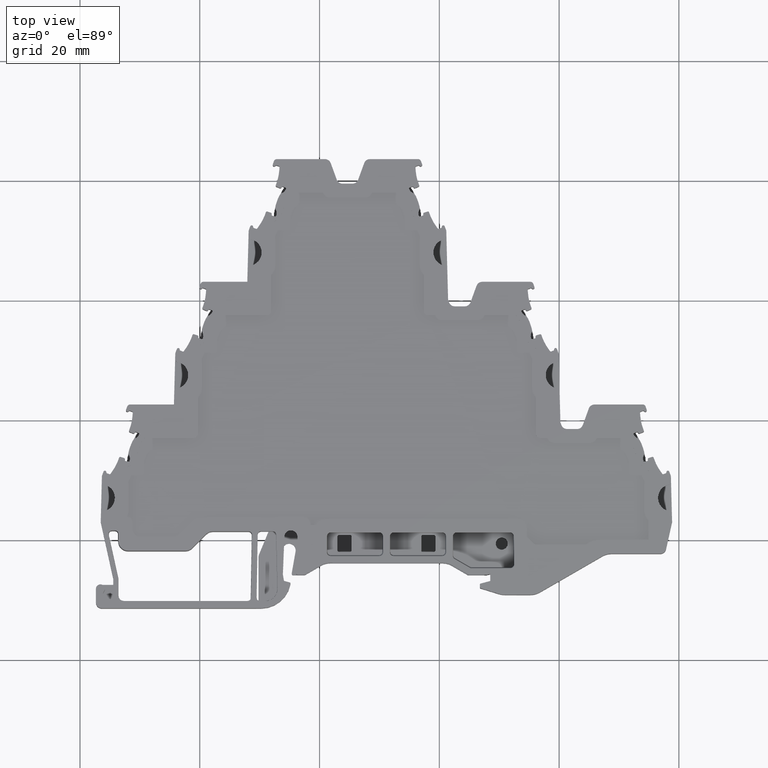
[diagram: clean part render]
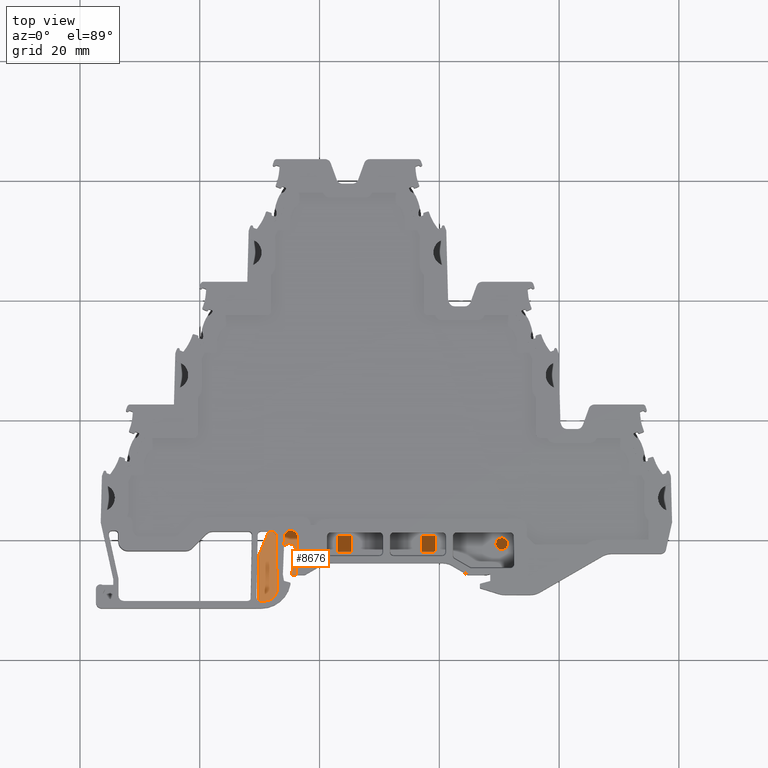
[diagram: same view with one face highlighted and labeled with its STEP entity id]
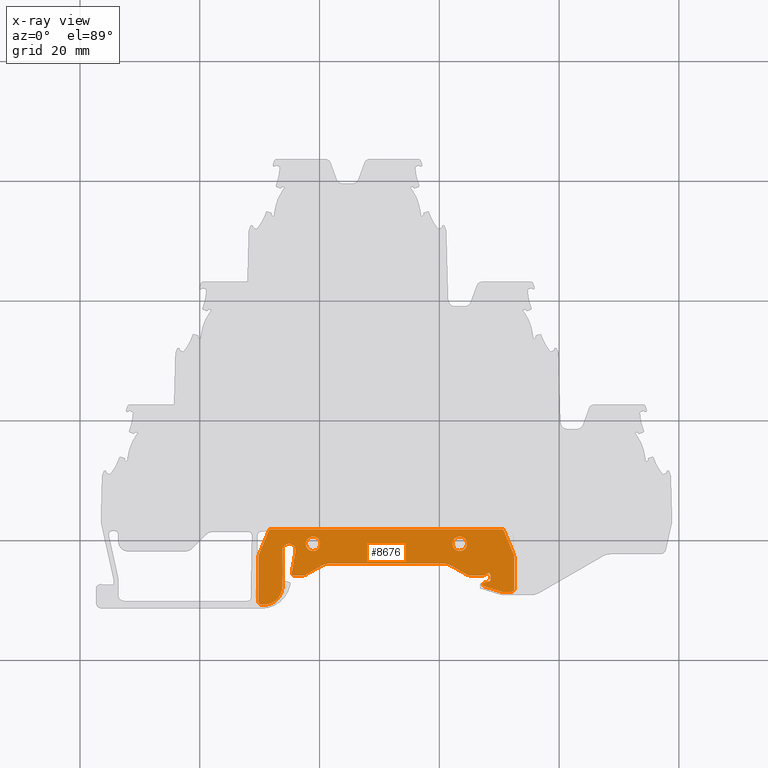
[diagram: x-ray of the same camera — body ghosted, the highlighted face saturated]
A machine part, top view. The second image highlights one B-rep face of the part: STEP entity #8676.
The next image is the same camera in x-ray: the body ghosted, the highlighted face saturated — about 0% of this face is hidden behind the body in this view.
In plain terms, the highlighted planar face has unit normal (-0, 0, -1).
Its self-contained STEP definition (entity closure, byte-faithful):
#25 = CARTESIAN_POINT ( 'NONE',  ( 1261.762938052043864, 756.0945901753019598, 3.425000000013875390 ) ) ;
#232 = VERTEX_POINT ( 'NONE', #2724 ) ;
#333 = CARTESIAN_POINT ( 'NONE',  ( 1287.267520204509992, 752.6346641252999916, 3.425000000003795453 ) ) ;
#547 = CARTESIAN_POINT ( 'NONE',  ( 1250.231337423040031, 749.2423689074909134, 3.424999999993710187 ) ) ;
#578 = CARTESIAN_POINT ( 'NONE',  ( 1292.511858430823850, 751.8485278146060864, 3.425000000001555467 ) ) ;
#618 = LINE ( 'NONE', #6256, #29927 ) ;
#793 = CIRCLE ( 'NONE', #17655, 3.000000000001223910 ) ;
#833 = CARTESIAN_POINT ( 'NONE',  ( 1253.811855569803811, 752.3099273790710413, 3.425000000002799805 ) ) ;
#858 = LINE ( 'NONE', #18043, #33421 ) ;
#959 = CIRCLE ( 'NONE', #35256, 0.2500000000003055334 ) ;
#1696 = EDGE_CURVE ( 'NONE', #8011, #3249, #31667, .T. ) ;
#1741 = CARTESIAN_POINT ( 'NONE',  ( 1287.517520204509992, 752.6346641252989684, 3.425000000003795453 ) ) ;
#1963 = CARTESIAN_POINT ( 'NONE',  ( 1290.634989282036486, 761.8130462823676226, 3.425000000030690384 ) ) ;
#2256 = DIRECTION ( 'NONE',  ( -2.960594732334076854E-12, -1.000000000000000000, -2.960594732334076854E-12 ) ) ;
#2277 = EDGE_CURVE ( 'NONE', #15313, #9259, #32645, .T. ) ;
#2496 = ORIENTED_EDGE ( 'NONE', *, *, #8839, .F. ) ;
#2498 = CARTESIAN_POINT ( 'NONE',  ( 1288.511858430829989, 753.1599273789639710, 3.425000000005345324 ) ) ;
#2517 = AXIS2_PLACEMENT_3D ( 'NONE', #36733, #36351, #2256 ) ;
#2724 = CARTESIAN_POINT ( 'NONE',  ( 1287.560225396755868, 754.1501041373800263, 3.425000000008235457 ) ) ;
#2768 = EDGE_CURVE ( 'NONE', #30899, #232, #4460, .T. ) ;
#2968 = VERTEX_POINT ( 'NONE', #29131 ) ;
#3249 = VERTEX_POINT ( 'NONE', #33986 ) ;
#3364 = CARTESIAN_POINT ( 'NONE',  ( 1251.485975355703886, 761.4409010957489272, 3.425000000029900349 ) ) ;
#3367 = DIRECTION ( 'NONE',  ( -1.000000000000000000, 3.015302874738534922E-12, 3.491481338421395299E-15 ) ) ;
#3531 = CARTESIAN_POINT ( 'NONE',  ( 1283.411855569846011, 759.3850622030839759, 3.425000000015005153 ) ) ;
#3596 = VERTEX_POINT ( 'NONE', #7031 ) ;
#3683 = ORIENTED_EDGE ( 'NONE', *, *, #36969, .F. ) ;
#3840 = VERTEX_POINT ( 'NONE', #25 ) ;
#3966 = DIRECTION ( 'NONE',  ( -1.776356821935509986E-15, 5.619248332499660241E-12, -1.000000000000000000 ) ) ;
#3998 = EDGE_CURVE ( 'NONE', #12007, #27921, #24018, .T. ) ;
#4096 = VERTEX_POINT ( 'NONE', #22789 ) ;
#4329 = VERTEX_POINT ( 'NONE', #6757 ) ;
#4460 = LINE ( 'NONE', #33277, #22576 ) ;
#4480 = DIRECTION ( 'NONE',  ( 3.713265354292279509E-12, 1.000000000000000000, 2.967515460675544983E-12 ) ) ;
#4488 = CARTESIAN_POINT ( 'NONE',  ( 1287.517520204509992, 752.5328591790309929, 3.425000000003570300 ) ) ;
#4639 = VECTOR ( 'NONE', #5277, 1000.000000000000000 ) ;
#4785 = DIRECTION ( 'NONE',  ( -2.960594732332981082E-12, -1.000000000000000000, -2.960594732332981082E-12 ) ) ;
#4913 = CARTESIAN_POINT ( 'NONE',  ( 1292.435737963354086, 757.5829825613900539, 3.425000000018430413 ) ) ;
#4971 = VECTOR ( 'NONE', #8352, 1000.000000000000000 ) ;
#5082 = DIRECTION ( 'NONE',  ( 0.3826834323621278178, -0.9238795325125136459, -2.689788538315124249E-12 ) ) ;
#5112 = CARTESIAN_POINT ( 'NONE',  ( 1253.333734420723886, 760.6755342310129890, 3.425000000027449865 ) ) ;
#5191 = AXIS2_PLACEMENT_3D ( 'NONE', #19377, #30866, #33507 ) ;
#5195 = EDGE_CURVE ( 'NONE', #34856, #8065, #36134, .T. ) ;
#5206 = DIRECTION ( 'NONE',  ( -1.776356821935509986E-15, 5.619248332499660241E-12, -1.000000000000000000 ) ) ;
#5250 = VECTOR ( 'NONE', #29871, 1000.000000000000114 ) ;
#5257 = CARTESIAN_POINT ( 'NONE',  ( 1287.410230152805980, 754.1099145043640419, 3.425000000008235457 ) ) ;
#5277 = DIRECTION ( 'NONE',  ( -1.000000000000000000, 2.906425021968365003E-12, 3.491481338098295227E-15 ) ) ;
#5460 = CIRCLE ( 'NONE', #32524, 0.2500000000000834888 ) ;
#5648 = CARTESIAN_POINT ( 'NONE',  ( 1287.443457614903764, 752.2940815987989254, 3.425000000002685230 ) ) ;
#5765 = LINE ( 'NONE', #20473, #20822 ) ;
#5913 = AXIS2_PLACEMENT_3D ( 'NONE', #20472, #8428, #15009 ) ;
#6034 = ORIENTED_EDGE ( 'NONE', *, *, #14248, .F. ) ;
#6104 = ORIENTED_EDGE ( 'NONE', *, *, #15786, .F. ) ;
#6256 = CARTESIAN_POINT ( 'NONE',  ( 1255.995146959158092, 758.1088821828790287, 3.425000000019890134 ) ) ;
#6301 = AXIS2_PLACEMENT_3D ( 'NONE', #28886, #34709, #26621 ) ;
#6559 = VECTOR ( 'NONE', #3367, 1000.000000000000000 ) ;
#6654 = ORIENTED_EDGE ( 'NONE', *, *, #22318, .T. ) ;
#6752 = EDGE_CURVE ( 'NONE', #19808, #4329, #36917, .T. ) ;
#6757 = CARTESIAN_POINT ( 'NONE',  ( 1292.435737963354086, 757.5829825613900539, 3.425000000018430413 ) ) ;
#6778 = DIRECTION ( 'NONE',  ( -2.664535259097119481E-12, -1.000000000000000000, -2.961172973488790795E-12 ) ) ;
#6786 = VERTEX_POINT ( 'NONE', #5648 ) ;
#6983 = DIRECTION ( 'NONE',  ( 0.000000000000000000, 1.000000000000000000, 5.619419859992468840E-12 ) ) ;
#7031 = CARTESIAN_POINT ( 'NONE',  ( 1253.811858430844040, 758.2998951783189341, 3.425000000020565150 ) ) ;
#7260 = DIRECTION ( 'NONE',  ( 0.000000000000000000, 1.000000000000000000, 5.619419859992468840E-12 ) ) ;
#7293 = EDGE_CURVE ( 'NONE', #4096, #31977, #26708, .T. ) ;
#7301 = CARTESIAN_POINT ( 'NONE',  ( 1290.837735783956077, 761.4409010956269412, 3.425000000029760017 ) ) ;
#7365 = DIRECTION ( 'NONE',  ( -3.034609600642204269E-12, -1.000000000000000000, -2.961172973492516743E-12 ) ) ;
#7388 = EDGE_CURVE ( 'NONE', #30764, #11444, #31440, .T. ) ;
#7883 = VERTEX_POINT ( 'NONE', #22611 ) ;
#7977 = ORIENTED_EDGE ( 'NONE', *, *, #1696, .T. ) ;
#8011 = VERTEX_POINT ( 'NONE', #26197 ) ;
#8065 = VERTEX_POINT ( 'NONE', #34668 ) ;
#8125 = EDGE_LOOP ( 'NONE', ( #7977, #16668 ) ) ;
#8140 = AXIS2_PLACEMENT_3D ( 'NONE', #30610, #33616, #16306 ) ;
#8235 = EDGE_CURVE ( 'NONE', #6786, #9489, #959, .T. ) ;
#8269 = VERTEX_POINT ( 'NONE', #36145 ) ;
#8341 = EDGE_CURVE ( 'NONE', #20255, #19808, #32862, .T. ) ;
#8345 = DIRECTION ( 'NONE',  ( 5.241255640397440142E-12, 1.000000000000000000, 2.967515460675540136E-12 ) ) ;
#8352 = DIRECTION ( 'NONE',  ( -1.000000000000000000, 3.123981769497315067E-12, 3.491481338743900175E-15 ) ) ;
#8384 = EDGE_CURVE ( 'NONE', #9634, #8269, #26319, .T. ) ;
#8387 = ORIENTED_EDGE ( 'NONE', *, *, #8384, .F. ) ;
#8414 = EDGE_CURVE ( 'NONE', #31405, #6786, #5765, .T. ) ;
#8428 = DIRECTION ( 'NONE',  ( -1.776356830050185078E-15, 2.961114267037269966E-12, -1.000000000000000000 ) ) ;
#8556 = EDGE_CURVE ( 'NONE', #27909, #27593, #16036, .T. ) ;
#8655 = AXIS2_PLACEMENT_3D ( 'NONE', #10255, #13437, #27394 ) ;
#8658 = LINE ( 'NONE', #37292, #6559 ) ;
#8676 = ADVANCED_FACE ( 'NONE', ( #36430, #28352, #22690 ), #21918, .F. ) ;
#8839 = EDGE_CURVE ( 'NONE', #16479, #7883, #28001, .T. ) ;
#8877 = CIRCLE ( 'NONE', #19088, 3.083962780616844590 ) ;
#9259 = VERTEX_POINT ( 'NONE', #3364 ) ;
#9445 = CARTESIAN_POINT ( 'NONE',  ( 1290.567683431072055, 751.3485278146119981, 3.425000000000000266 ) ) ;
#9461 = LINE ( 'NONE', #23581, #13025 ) ;
#9489 = VERTEX_POINT ( 'NONE', #37249 ) ;
#9625 = CIRCLE ( 'NONE', #11425, 1.199999999999978861 ) ;
#9634 = VERTEX_POINT ( 'NONE', #17479 ) ;
#9644 = CARTESIAN_POINT ( 'NONE',  ( 1258.911855569846011, 759.3850622030839759, 3.425000000015050006 ) ) ;
#9661 = EDGE_LOOP ( 'NONE', ( #17596, #26268 ) ) ;
#9716 = CARTESIAN_POINT ( 'NONE',  ( 1288.061863186884011, 754.4397126067320869, 3.425000000009120082 ) ) ;
#9768 = CARTESIAN_POINT ( 'NONE',  ( 1250.727985005146593, 749.2021156418251167, 3.424999999993457944 ) ) ;
#10035 = DIRECTION ( 'NONE',  ( -1.776356830050185078E-15, 2.961114267037269966E-12, -1.000000000000000000 ) ) ;
#10096 = ORIENTED_EDGE ( 'NONE', *, *, #2277, .F. ) ;
#10255 = CARTESIAN_POINT ( 'NONE',  ( 1257.387575559390143, 754.6099145044560146, 3.425000000009450041 ) ) ;
#10601 = CIRCLE ( 'NONE', #21435, 2.999999999999891642 ) ;
#10720 = ORIENTED_EDGE ( 'NONE', *, *, #26083, .F. ) ;
#11016 = DIRECTION ( 'NONE',  ( 3.119670624889734695E-12, 1.000000000000000000, 2.937768593559204923E-12 ) ) ;
#11193 = ORIENTED_EDGE ( 'NONE', *, *, #21308, .F. ) ;
#11229 = EDGE_CURVE ( 'NONE', #7883, #36886, #25342, .T. ) ;
#11260 = VECTOR ( 'NONE', #26267, 1000.000000000000000 ) ;
#11262 = CARTESIAN_POINT ( 'NONE',  ( 1290.567683431073874, 751.8485278146121118, 3.425000000001559908 ) ) ;
#11276 = AXIS2_PLACEMENT_3D ( 'NONE', #36372, #10035, #30184 ) ;
#11380 = EDGE_CURVE ( 'NONE', #36886, #15313, #17748, .T. ) ;
#11425 = AXIS2_PLACEMENT_3D ( 'NONE', #27414, #27062, #7260 ) ;
#11444 = VERTEX_POINT ( 'NONE', #13250 ) ;
#11765 = VECTOR ( 'NONE', #8345, 1000.000000000000000 ) ;
#11805 = DIRECTION ( 'NONE',  ( 0.9659230709110930846, 0.2588293280941775798, 7.647075304279440991E-13 ) ) ;
#11809 = EDGE_CURVE ( 'NONE', #14409, #12884, #15386, .T. ) ;
#11936 = CARTESIAN_POINT ( 'NONE',  ( 1258.911855569846011, 758.1850622030841578, 3.425000000008306955 ) ) ;
#12007 = VERTEX_POINT ( 'NONE', #34383 ) ;
#12061 = VERTEX_POINT ( 'NONE', #30040 ) ;
#12079 = DIRECTION ( 'NONE',  ( -3.101666818361324906E-12, -1.000000000000000000, -2.967515460675544983E-12 ) ) ;
#12139 = DIRECTION ( 'NONE',  ( -3.108624468950090558E-12, -1.000000000000000000, -2.961172973492078515E-12 ) ) ;
#12189 = DIRECTION ( 'NONE',  ( -1.776356821935509986E-15, 5.619248332499660241E-12, -1.000000000000000000 ) ) ;
#12195 = EDGE_CURVE ( 'NONE', #9489, #32106, #16275, .T. ) ;
#12529 = CARTESIAN_POINT ( 'NONE',  ( 1249.811858430839948, 757.2003129434060611, 3.425000000017250024 ) ) ;
#12884 = VERTEX_POINT ( 'NONE', #24231 ) ;
#12943 = CARTESIAN_POINT ( 'NONE',  ( 1260.262930004875898, 755.6926617406099922, 3.425000000012994761 ) ) ;
#13020 = CARTESIAN_POINT ( 'NONE',  ( 1287.410230152805980, 754.4099145043639965, 3.425000000009120082 ) ) ;
#13025 = VECTOR ( 'NONE', #21131, 1000.000000000000000 ) ;
#13215 = ORIENTED_EDGE ( 'NONE', *, *, #31229, .F. ) ;
#13250 = CARTESIAN_POINT ( 'NONE',  ( 1255.352104814335917, 754.4620089577629187, 3.425000000009014833 ) ) ;
#13342 = CARTESIAN_POINT ( 'NONE',  ( 1284.936141302275928, 754.1099145043720000, 3.425000000008239898 ) ) ;
#13437 = DIRECTION ( 'NONE',  ( -1.776356830050185078E-15, 2.961114267037269966E-12, -1.000000000000000000 ) ) ;
#13468 = CARTESIAN_POINT ( 'NONE',  ( 1249.811858430839948, 757.2003129434060611, 3.425000000017250024 ) ) ;
#13475 = EDGE_CURVE ( 'NONE', #31977, #30764, #13994, .T. ) ;
#13537 = CARTESIAN_POINT ( 'NONE',  ( 1257.387575559390143, 754.1099145044561283, 3.425000000008119994 ) ) ;
#13662 = CARTESIAN_POINT ( 'NONE',  ( 1292.011858430824077, 751.8485278146081328, 3.425000000001555467 ) ) ;
#13712 = ORIENTED_EDGE ( 'NONE', *, *, #31416, .F. ) ;
#13988 = CARTESIAN_POINT ( 'NONE',  ( 1287.267520204509992, 752.6346641252999916, 3.425000000003795453 ) ) ;
#13994 = LINE ( 'NONE', #22661, #4971 ) ;
#14235 = AXIS2_PLACEMENT_3D ( 'NONE', #27061, #18389, #27235 ) ;
#14248 = EDGE_CURVE ( 'NONE', #8269, #12061, #793, .T. ) ;
#14409 = VERTEX_POINT ( 'NONE', #14844 ) ;
#14583 = DIRECTION ( 'NONE',  ( -1.776356830050185078E-15, 2.961114267037269966E-12, -1.000000000000000000 ) ) ;
#14746 = CIRCLE ( 'NONE', #25582, 1.999999999999779732 ) ;
#14749 = AXIS2_PLACEMENT_3D ( 'NONE', #13662, #37008, #24962 ) ;
#14844 = CARTESIAN_POINT ( 'NONE',  ( 1292.511858430823850, 751.8485278146060864, 3.425000000001555467 ) ) ;
#14990 = ORIENTED_EDGE ( 'NONE', *, *, #36226, .F. ) ;
#15009 = DIRECTION ( 'NONE',  ( -3.108624468950090558E-12, -1.000000000000000000, -2.961172973492078515E-12 ) ) ;
#15024 = DIRECTION ( 'NONE',  ( -0.8660238551023851095, -0.5000026823864079928, -1.480741984239946048E-12 ) ) ;
#15171 = CARTESIAN_POINT ( 'NONE',  ( 1250.811858430841994, 757.2003129434031052, 3.425000000017245139 ) ) ;
#15313 = VERTEX_POINT ( 'NONE', #23344 ) ;
#15366 = VECTOR ( 'NONE', #4480, 1000.000000000000000 ) ;
#15386 = CIRCLE ( 'NONE', #14749, 0.5000000000001669775 ) ;
#15591 = CARTESIAN_POINT ( 'NONE',  ( 1255.995146959158092, 758.1088821828790287, 3.425000000019890134 ) ) ;
#15786 = EDGE_CURVE ( 'NONE', #2968, #34856, #23863, .T. ) ;
#15940 = AXIS2_PLACEMENT_3D ( 'NONE', #15171, #26481, #12139 ) ;
#16036 = CIRCLE ( 'NONE', #14235, 3.083962780616844590 ) ;
#16102 = CARTESIAN_POINT ( 'NONE',  ( 1255.647547140240022, 754.4099145044619945, 3.425000000009010392 ) ) ;
#16186 = CARTESIAN_POINT ( 'NONE',  ( 1280.560778809619933, 753.0945901752450027, 3.425000000005149925 ) ) ;
#16275 = LINE ( 'NONE', #13988, #11765 ) ;
#16306 = DIRECTION ( 'NONE',  ( -3.060176890657050133E-12, -1.000000000000000000, -5.619248332499650547E-12 ) ) ;
#16325 = CARTESIAN_POINT ( 'NONE',  ( 1250.727985005155915, 752.2860784224419604, 3.425000000002590195 ) ) ;
#16475 = ORIENTED_EDGE ( 'NONE', *, *, #7293, .F. ) ;
#16479 = VERTEX_POINT ( 'NONE', #547 ) ;
#16586 = CARTESIAN_POINT ( 'NONE',  ( 1290.567683431072055, 751.3485278146119981, 3.425000000000000266 ) ) ;
#16609 = CIRCLE ( 'NONE', #26246, 0.2999999999997449152 ) ;
#16629 = DIRECTION ( 'NONE',  ( -1.776356830050185078E-15, 2.961114267037269966E-12, -1.000000000000000000 ) ) ;
#16668 = ORIENTED_EDGE ( 'NONE', *, *, #16955, .T. ) ;
#16753 = DIRECTION ( 'NONE',  ( 1.776356830050185078E-15, -2.961114267037269966E-12, 1.000000000000000000 ) ) ;
#16955 = EDGE_CURVE ( 'NONE', #3249, #8011, #30514, .T. ) ;
#17031 = EDGE_CURVE ( 'NONE', #27593, #16479, #8877, .T. ) ;
#17042 = ORIENTED_EDGE ( 'NONE', *, *, #17972, .F. ) ;
#17102 = ORIENTED_EDGE ( 'NONE', *, *, #7388, .F. ) ;
#17137 = VERTEX_POINT ( 'NONE', #15591 ) ;
#17156 = LINE ( 'NONE', #16586, #4639 ) ;
#17479 = CARTESIAN_POINT ( 'NONE',  ( 1284.686139961080016, 754.1769025768220445, 3.425000000008465051 ) ) ;
#17596 = ORIENTED_EDGE ( 'NONE', *, *, #3998, .T. ) ;
#17648 = VECTOR ( 'NONE', #5082, 1000.000000000000114 ) ;
#17655 = AXIS2_PLACEMENT_3D ( 'NONE', #16186, #16753, #25211 ) ;
#17701 = EDGE_CURVE ( 'NONE', #17137, #3596, #17750, .T. ) ;
#17748 = CIRCLE ( 'NONE', #15940, 1.000000000000111910 ) ;
#17750 = CIRCLE ( 'NONE', #6301, 1.099999999999767830 ) ;
#17972 = EDGE_CURVE ( 'NONE', #232, #32006, #16609, .T. ) ;
#17978 = CARTESIAN_POINT ( 'NONE',  ( 1261.762938052043864, 756.0945901753019598, 3.425000000013875390 ) ) ;
#18043 = CARTESIAN_POINT ( 'NONE',  ( 1257.637576900582189, 754.1769025769049222, 3.425000000008340262 ) ) ;
#18297 = DIRECTION ( 'NONE',  ( -3.108624469015664413E-12, -1.000000000000000000, -2.961172973554541960E-12 ) ) ;
#18389 = DIRECTION ( 'NONE',  ( -1.776356830050185078E-15, 2.961114267037269966E-12, -1.000000000000000000 ) ) ;
#18504 = DIRECTION ( 'NONE',  ( -2.960594732336267994E-12, -1.000000000000000000, -2.960594732336267994E-12 ) ) ;
#18690 = DIRECTION ( 'NONE',  ( 1.776356830050185078E-15, -2.961114267037269966E-12, 1.000000000000000000 ) ) ;
#18697 = ORIENTED_EDGE ( 'NONE', *, *, #22517, .F. ) ;
#18760 = ORIENTED_EDGE ( 'NONE', *, *, #32954, .F. ) ;
#18893 = ORIENTED_EDGE ( 'NONE', *, *, #8341, .F. ) ;
#19088 = AXIS2_PLACEMENT_3D ( 'NONE', #16325, #32898, #24604 ) ;
#19151 = CIRCLE ( 'NONE', #29382, 0.5000000000000559552 ) ;
#19251 = EDGE_CURVE ( 'NONE', #12061, #3840, #28908, .T. ) ;
#19335 = VERTEX_POINT ( 'NONE', #31911 ) ;
#19377 = CARTESIAN_POINT ( 'NONE',  ( 1288.989976718932212, 760.6755342309029402, 3.425000000027325076 ) ) ;
#19472 = ORIENTED_EDGE ( 'NONE', *, *, #32551, .F. ) ;
#19627 = ORIENTED_EDGE ( 'NONE', *, *, #5195, .F. ) ;
#19808 = VERTEX_POINT ( 'NONE', #7301 ) ;
#19849 = ORIENTED_EDGE ( 'NONE', *, *, #6752, .F. ) ;
#20046 = CARTESIAN_POINT ( 'NONE',  ( 1250.311858430808115, 749.7358426831839324, 3.424999999995264943 ) ) ;
#20255 = VERTEX_POINT ( 'NONE', #1963 ) ;
#20472 = CARTESIAN_POINT ( 'NONE',  ( 1284.936141302275928, 754.6099145043720000, 3.425000000009574830 ) ) ;
#20473 = CARTESIAN_POINT ( 'NONE',  ( 1287.443457614903764, 752.2940815987989254, 3.425000000002685230 ) ) ;
#20822 = VECTOR ( 'NONE', #34582, 1000.000000000000000 ) ;
#20835 = AXIS2_PLACEMENT_3D ( 'NONE', #22339, #5206, #26117 ) ;
#20873 = EDGE_CURVE ( 'NONE', #9259, #19335, #14746, .T. ) ;
#21033 = ORIENTED_EDGE ( 'NONE', *, *, #12195, .F. ) ;
#21131 = DIRECTION ( 'NONE',  ( -1.000000000000000000, 0.000000000000000000, 1.776356821935509986E-15 ) ) ;
#21308 = EDGE_CURVE ( 'NONE', #33440, #4096, #858, .T. ) ;
#21435 = AXIS2_PLACEMENT_3D ( 'NONE', #32993, #18690, #7365 ) ;
#21692 = CARTESIAN_POINT ( 'NONE',  ( 1290.419558251868011, 751.3709726541489999, 3.425000000000000266 ) ) ;
#21918 = PLANE ( 'NONE',  #8140 ) ;
#22148 = CIRCLE ( 'NONE', #5913, 0.5000000000000559552 ) ;
#22318 = EDGE_CURVE ( 'NONE', #20255, #19335, #9461, .T. ) ;
#22339 = CARTESIAN_POINT ( 'NONE',  ( 1283.411855569846011, 759.3850622030839759, 3.425000000015005153 ) ) ;
#22517 = EDGE_CURVE ( 'NONE', #12884, #32932, #17156, .T. ) ;
#22576 = VECTOR ( 'NONE', #28015, 1000.000000000000000 ) ;
#22611 = CARTESIAN_POINT ( 'NONE',  ( 1249.811858430817892, 749.7358426831729048, 3.424999999995264943 ) ) ;
#22661 = CARTESIAN_POINT ( 'NONE',  ( 1255.647547140237975, 754.1099145044620400, 3.425000000008125323 ) ) ;
#22690 = FACE_OUTER_BOUND ( 'NONE', #23096, .T. ) ;
#22789 = CARTESIAN_POINT ( 'NONE',  ( 1257.637576900582189, 754.1769025769049222, 3.425000000008340262 ) ) ;
#23051 = ORIENTED_EDGE ( 'NONE', *, *, #29765, .F. ) ;
#23096 = EDGE_LOOP ( 'NONE', ( #18893, #6654, #31972, #10096, #35273, #23747, #2496, #29839, #26935, #3683, #23679, #13215, #17102, #33756, #16475, #11193, #14990, #36651, #6034, #8387, #19472, #10720, #17042, #25254, #23051, #19627, #6104, #29357, #21033, #26409, #24573, #35912, #18697, #35665, #18760, #13712, #19849 ) ) ;
#23344 = CARTESIAN_POINT ( 'NONE',  ( 1249.887978898330175, 757.5829963757710175, 3.425000000018359803 ) ) ;
#23581 = CARTESIAN_POINT ( 'NONE',  ( 1278.661855569839872, 761.8130462823684184, 3.425000000028658675 ) ) ;
#23603 = DIRECTION ( 'NONE',  ( 0.1736481776697454682, 0.9848077530117116396, 2.921825943485178775E-12 ) ) ;
#23642 = VECTOR ( 'NONE', #29836, 1000.000000000000114 ) ;
#23679 = ORIENTED_EDGE ( 'NONE', *, *, #17701, .F. ) ;
#23747 = ORIENTED_EDGE ( 'NONE', *, *, #11229, .F. ) ;
#23863 = LINE ( 'NONE', #26695, #26849 ) ;
#24018 = CIRCLE ( 'NONE', #31838, 1.199999999999978861 ) ;
#24231 = CARTESIAN_POINT ( 'NONE',  ( 1292.011858430822031, 751.3485278146080191, 3.425000000000000266 ) ) ;
#24566 = DIRECTION ( 'NONE',  ( -1.776356830050185078E-15, 2.961114267037269966E-12, -1.000000000000000000 ) ) ;
#24573 = ORIENTED_EDGE ( 'NONE', *, *, #8414, .F. ) ;
#24604 = DIRECTION ( 'NONE',  ( -3.095990026788391174E-12, -1.000000000000000000, -2.961131086213806190E-12 ) ) ;
#24958 = EDGE_CURVE ( 'NONE', #27921, #12007, #9625, .T. ) ;
#24962 = DIRECTION ( 'NONE',  ( -3.108624468949400298E-12, -1.000000000000000000, -2.961172973491420971E-12 ) ) ;
#25211 = DIRECTION ( 'NONE',  ( -3.034609600640856466E-12, -1.000000000000000000, -2.961172973491201655E-12 ) ) ;
#25254 = ORIENTED_EDGE ( 'NONE', *, *, #2768, .F. ) ;
#25342 = LINE ( 'NONE', #13468, #29170 ) ;
#25582 = AXIS2_PLACEMENT_3D ( 'NONE', #5112, #16629, #28121 ) ;
#25965 = DIRECTION ( 'NONE',  ( -3.108624468950090558E-12, -1.000000000000000000, -2.961172973492078515E-12 ) ) ;
#26083 = EDGE_CURVE ( 'NONE', #32006, #36580, #8658, .T. ) ;
#26117 = DIRECTION ( 'NONE',  ( 0.000000000000000000, 1.000000000000000000, 5.619419859992468840E-12 ) ) ;
#26141 = CARTESIAN_POINT ( 'NONE',  ( 1292.511858430839993, 757.2002991290249838, 3.425000000017320190 ) ) ;
#26197 = CARTESIAN_POINT ( 'NONE',  ( 1283.411855569846011, 760.5850622030841350, 3.425000000021750868 ) ) ;
#26246 = AXIS2_PLACEMENT_3D ( 'NONE', #13020, #29996, #18504 ) ;
#26267 = DIRECTION ( 'NONE',  ( -1.000000000000000000, 3.012927930994425004E-12, -8.320758577248530668E-15 ) ) ;
#26268 = ORIENTED_EDGE ( 'NONE', *, *, #24958, .T. ) ;
#26319 = LINE ( 'NONE', #29520, #37057 ) ;
#26409 = ORIENTED_EDGE ( 'NONE', *, *, #8235, .F. ) ;
#26416 = LINE ( 'NONE', #578, #30027 ) ;
#26481 = DIRECTION ( 'NONE',  ( -1.776356830050185078E-15, 2.961114267037269966E-12, -1.000000000000000000 ) ) ;
#26621 = DIRECTION ( 'NONE',  ( -3.027880976251065820E-12, -1.000000000000000000, -2.961251824560124467E-12 ) ) ;
#26695 = CARTESIAN_POINT ( 'NONE',  ( 1288.511858430829989, 753.1599273789639710, 3.425000000005345324 ) ) ;
#26708 = CIRCLE ( 'NONE', #8655, 0.5000000000000559552 ) ;
#26849 = VECTOR ( 'NONE', #11805, 1000.000000000000114 ) ;
#26935 = ORIENTED_EDGE ( 'NONE', *, *, #8556, .F. ) ;
#27061 = CARTESIAN_POINT ( 'NONE',  ( 1250.727985005155915, 752.2860784224419604, 3.425000000002590195 ) ) ;
#27062 = DIRECTION ( 'NONE',  ( -1.776356821935509986E-15, 5.619248332499660241E-12, -1.000000000000000000 ) ) ;
#27235 = DIRECTION ( 'NONE',  ( -3.095990026788391174E-12, -1.000000000000000000, -2.961131086213806190E-12 ) ) ;
#27304 = DIRECTION ( 'NONE',  ( -1.776356830050185078E-15, 2.961114267037269966E-12, -1.000000000000000000 ) ) ;
#27394 = DIRECTION ( 'NONE',  ( -3.108624468950090558E-12, -1.000000000000000000, -2.961172973492078515E-12 ) ) ;
#27414 = CARTESIAN_POINT ( 'NONE',  ( 1258.911855569846011, 759.3850622030839759, 3.425000000015050006 ) ) ;
#27509 = AXIS2_PLACEMENT_3D ( 'NONE', #3531, #12189, #35165 ) ;
#27593 = VERTEX_POINT ( 'NONE', #9768 ) ;
#27826 = AXIS2_PLACEMENT_3D ( 'NONE', #16102, #24566, #4785 ) ;
#27909 = VERTEX_POINT ( 'NONE', #35096 ) ;
#27921 = VERTEX_POINT ( 'NONE', #11936 ) ;
#28001 = CIRCLE ( 'NONE', #28599, 0.4999999999895088365 ) ;
#28015 = DIRECTION ( 'NONE',  ( -0.8660345566149691976, -0.4999841464973801552, -1.480686941338548267E-12 ) ) ;
#28121 = DIRECTION ( 'NONE',  ( -3.108624468950780818E-12, -1.000000000000000000, -2.961172973492735655E-12 ) ) ;
#28123 = DIRECTION ( 'NONE',  ( -1.776356830050185078E-15, 2.961114267037269966E-12, -1.000000000000000000 ) ) ;
#28352 = FACE_BOUND ( 'NONE', #9661, .T. ) ;
#28599 = AXIS2_PLACEMENT_3D ( 'NONE', #20046, #14583, #18297 ) ;
#28775 = DIRECTION ( 'NONE',  ( -0.8660238550993066831, 0.5000026823917397278, 1.486789396497695300E-12 ) ) ;
#28886 = CARTESIAN_POINT ( 'NONE',  ( 1254.911858430844177, 758.2998951783159782, 3.425000000020559821 ) ) ;
#28908 = LINE ( 'NONE', #17978, #11260 ) ;
#29131 = CARTESIAN_POINT ( 'NONE',  ( 1287.452812872483946, 752.8761448930270035, 3.425000000004460254 ) ) ;
#29149 = DIRECTION ( 'NONE',  ( -1.776356830050185078E-15, 2.961114267037269966E-12, -1.000000000000000000 ) ) ;
#29170 = VECTOR ( 'NONE', #11016, 1000.000000000000000 ) ;
#29357 = ORIENTED_EDGE ( 'NONE', *, *, #34444, .F. ) ;
#29382 = AXIS2_PLACEMENT_3D ( 'NONE', #11262, #29149, #25965 ) ;
#29520 = CARTESIAN_POINT ( 'NONE',  ( 1282.060786856795858, 755.6926617405429170, 3.425000000012915269 ) ) ;
#29673 = CARTESIAN_POINT ( 'NONE',  ( 1255.647547140237975, 754.1099145044620400, 3.425000000008125323 ) ) ;
#29765 = EDGE_CURVE ( 'NONE', #8065, #30899, #30185, .T. ) ;
#29836 = DIRECTION ( 'NONE',  ( 0.3826834323680105010, 0.9238795325100768174, 2.740290664466149557E-12 ) ) ;
#29839 = ORIENTED_EDGE ( 'NONE', *, *, #17031, .F. ) ;
#29871 = DIRECTION ( 'NONE',  ( -4.776389567471609391E-07, -0.9999999999998858691, -2.967515459007549818E-12 ) ) ;
#29927 = VECTOR ( 'NONE', #23603, 1000.000000000000114 ) ;
#29996 = DIRECTION ( 'NONE',  ( -1.776356830050185078E-15, 2.961114267037269966E-12, -1.000000000000000000 ) ) ;
#30027 = VECTOR ( 'NONE', #12079, 1000.000000000000000 ) ;
#30040 = CARTESIAN_POINT ( 'NONE',  ( 1280.560778809629710, 756.0945901752460259, 3.425000000014029933 ) ) ;
#30184 = DIRECTION ( 'NONE',  ( -3.108624468951471077E-12, -1.000000000000000000, -2.961172973493393199E-12 ) ) ;
#30185 = CIRCLE ( 'NONE', #2517, 0.2999999999999669598 ) ;
#30241 = EDGE_CURVE ( 'NONE', #32932, #31405, #19151, .T. ) ;
#30299 = CARTESIAN_POINT ( 'NONE',  ( 1288.511858430832035, 754.1799022397469798, 3.425000000008455281 ) ) ;
#30514 = CIRCLE ( 'NONE', #27509, 1.199999999999978861 ) ;
#30524 = CIRCLE ( 'NONE', #11276, 0.9999999999996678213 ) ;
#30610 = CARTESIAN_POINT ( 'NONE',  ( 1278.661855569839872, 762.9255342309360231, 3.425000000034910119 ) ) ;
#30764 = VERTEX_POINT ( 'NONE', #29673 ) ;
#30866 = DIRECTION ( 'NONE',  ( -1.776356830050185078E-15, 2.961114267037269966E-12, -1.000000000000000000 ) ) ;
#30899 = VERTEX_POINT ( 'NONE', #9716 ) ;
#31229 = EDGE_CURVE ( 'NONE', #11444, #17137, #618, .T. ) ;
#31405 = VERTEX_POINT ( 'NONE', #21692 ) ;
#31416 = EDGE_CURVE ( 'NONE', #4329, #35170, #30524, .T. ) ;
#31440 = CIRCLE ( 'NONE', #27826, 0.3000000000000779821 ) ;
#31667 = CIRCLE ( 'NONE', #20835, 1.199999999999978861 ) ;
#31838 = AXIS2_PLACEMENT_3D ( 'NONE', #9644, #3966, #6983 ) ;
#31911 = CARTESIAN_POINT ( 'NONE',  ( 1251.688721857542987, 761.8130462823675089, 3.425000000030821390 ) ) ;
#31972 = ORIENTED_EDGE ( 'NONE', *, *, #20873, .F. ) ;
#31977 = VERTEX_POINT ( 'NONE', #13537 ) ;
#32006 = VERTEX_POINT ( 'NONE', #5257 ) ;
#32106 = VERTEX_POINT ( 'NONE', #333 ) ;
#32312 = LINE ( 'NONE', #833, #5250 ) ;
#32524 = AXIS2_PLACEMENT_3D ( 'NONE', #1741, #28123, #33941 ) ;
#32551 = EDGE_CURVE ( 'NONE', #36580, #9634, #22148, .T. ) ;
#32645 = LINE ( 'NONE', #33184, #23642 ) ;
#32862 = CIRCLE ( 'NONE', #5191, 1.999999999999890754 ) ;
#32898 = DIRECTION ( 'NONE',  ( -1.776356830050185078E-15, 2.961114267037269966E-12, -1.000000000000000000 ) ) ;
#32932 = VERTEX_POINT ( 'NONE', #9445 ) ;
#32954 = EDGE_CURVE ( 'NONE', #35170, #14409, #26416, .T. ) ;
#32993 = CARTESIAN_POINT ( 'NONE',  ( 1261.762938052035906, 753.0945901753019598, 3.425000000005215206 ) ) ;
#33184 = CARTESIAN_POINT ( 'NONE',  ( 1251.485975355703886, 761.4409010957489272, 3.425000000029900349 ) ) ;
#33277 = CARTESIAN_POINT ( 'NONE',  ( 1287.560225396755868, 754.1501041373800263, 3.425000000008235457 ) ) ;
#33421 = VECTOR ( 'NONE', #15024, 999.9999999999998863 ) ;
#33440 = VERTEX_POINT ( 'NONE', #12943 ) ;
#33507 = DIRECTION ( 'NONE',  ( -3.108624468950607950E-12, -1.000000000000000000, -2.961172973492571269E-12 ) ) ;
#33616 = DIRECTION ( 'NONE',  ( -1.776356821935509986E-15, 5.619248332499656202E-12, -1.000000000000000000 ) ) ;
#33756 = ORIENTED_EDGE ( 'NONE', *, *, #13475, .F. ) ;
#33941 = DIRECTION ( 'NONE',  ( -2.664535259099485912E-12, -1.000000000000000000, -2.961172973491420971E-12 ) ) ;
#33986 = CARTESIAN_POINT ( 'NONE',  ( 1283.411855569846011, 758.1850622030841578, 3.425000000008264323 ) ) ;
#34383 = CARTESIAN_POINT ( 'NONE',  ( 1258.911855569846011, 760.5850622030841350, 3.425000000021793500 ) ) ;
#34444 = EDGE_CURVE ( 'NONE', #32106, #2968, #5460, .T. ) ;
#34582 = DIRECTION ( 'NONE',  ( -0.9551103209262932214, 0.2962503584134090207, 8.824622686755682398E-13 ) ) ;
#34668 = CARTESIAN_POINT ( 'NONE',  ( 1288.511858430832035, 754.1799022397469798, 3.425000000008455281 ) ) ;
#34709 = DIRECTION ( 'NONE',  ( 1.776356830050185078E-15, -2.961114267037269966E-12, 1.000000000000000000 ) ) ;
#34856 = VERTEX_POINT ( 'NONE', #2498 ) ;
#35096 = CARTESIAN_POINT ( 'NONE',  ( 1253.811855569803811, 752.3099273790710413, 3.425000000002799805 ) ) ;
#35165 = DIRECTION ( 'NONE',  ( 0.000000000000000000, 1.000000000000000000, 5.619419859992468840E-12 ) ) ;
#35170 = VERTEX_POINT ( 'NONE', #26141 ) ;
#35256 = AXIS2_PLACEMENT_3D ( 'NONE', #4488, #27304, #6778 ) ;
#35273 = ORIENTED_EDGE ( 'NONE', *, *, #11380, .F. ) ;
#35665 = ORIENTED_EDGE ( 'NONE', *, *, #11809, .F. ) ;
#35912 = ORIENTED_EDGE ( 'NONE', *, *, #30241, .F. ) ;
#36134 = LINE ( 'NONE', #30299, #15366 ) ;
#36145 = CARTESIAN_POINT ( 'NONE',  ( 1282.060786856795858, 755.6926617405429170, 3.425000000012915269 ) ) ;
#36226 = EDGE_CURVE ( 'NONE', #3840, #33440, #10601, .T. ) ;
#36351 = DIRECTION ( 'NONE',  ( 1.776356830050185078E-15, -2.961114267037269966E-12, 1.000000000000000000 ) ) ;
#36372 = CARTESIAN_POINT ( 'NONE',  ( 1291.511858430842040, 757.2002991290279397, 3.425000000017325075 ) ) ;
#36430 = FACE_BOUND ( 'NONE', #8125, .T. ) ;
#36580 = VERTEX_POINT ( 'NONE', #13342 ) ;
#36651 = ORIENTED_EDGE ( 'NONE', *, *, #19251, .F. ) ;
#36733 = CARTESIAN_POINT ( 'NONE',  ( 1288.211858430832081, 754.1799022397480030, 3.425000000008455281 ) ) ;
#36886 = VERTEX_POINT ( 'NONE', #12529 ) ;
#36917 = LINE ( 'NONE', #4913, #17648 ) ;
#36969 = EDGE_CURVE ( 'NONE', #3596, #27909, #32312, .T. ) ;
#37008 = DIRECTION ( 'NONE',  ( -1.776356830050185078E-15, 2.961114267037269966E-12, -1.000000000000000000 ) ) ;
#37057 = VECTOR ( 'NONE', #28775, 1000.000000000000227 ) ;
#37249 = CARTESIAN_POINT ( 'NONE',  ( 1287.267520204509992, 752.5328591790309929, 3.425000000003570300 ) ) ;
#37292 = CARTESIAN_POINT ( 'NONE',  ( 1284.936141302275928, 754.1099145043720000, 3.425000000008239898 ) ) ;